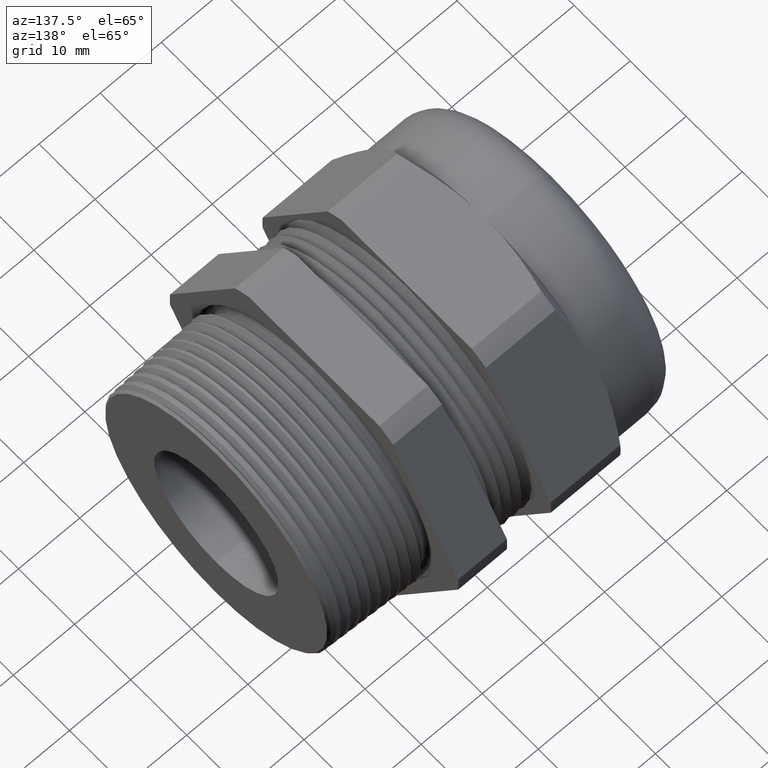
[diagram: clean part render]
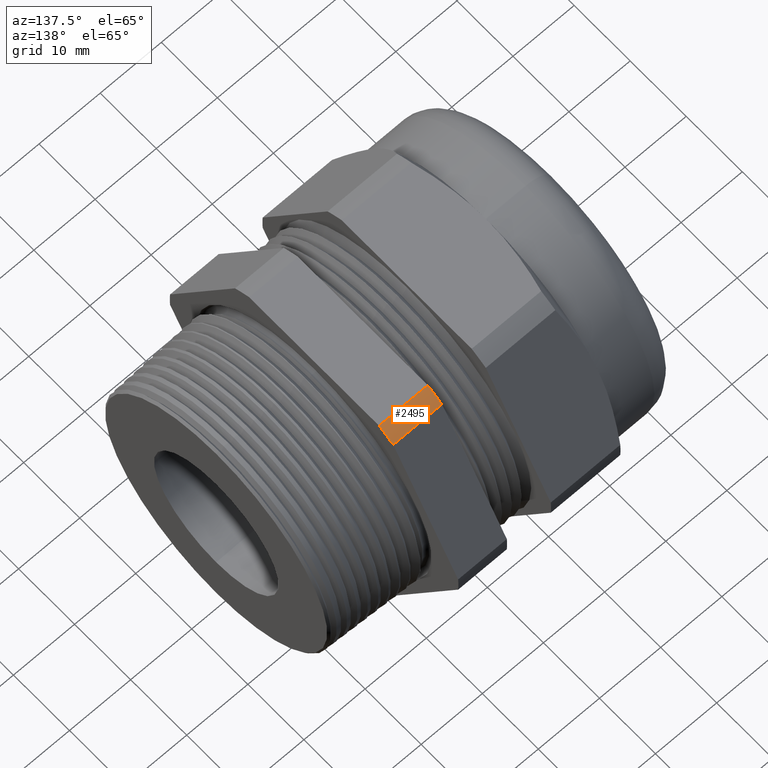
[diagram: same view with one face highlighted and labeled with its STEP entity id]
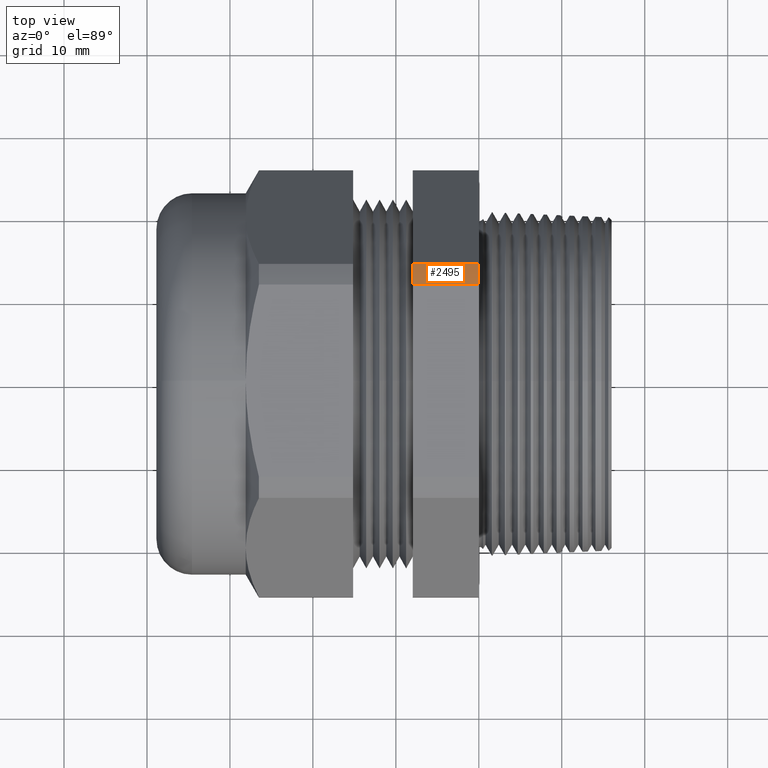
[diagram: same view with one face highlighted and labeled with its STEP entity id]
A machine part, auxiliary view. The second image highlights one B-rep face of the part: STEP entity #2495.
A second angle (top view) of the same face is appended — the face is thin or edge-on in the first view.
In plain terms, the highlighted cylindrical surface (partial cylindrical patch) has radius 25.7454 mm, axis along (-1, 0, 0).
Its self-contained STEP definition (entity closure, byte-faithful):
#110 = VERTEX_POINT ( 'NONE', #1557 ) ;
#111 = EDGE_CURVE ( 'NONE', #113, #110, #1556, .T. ) ;
#113 = VERTEX_POINT ( 'NONE', #1551 ) ;
#172 = VERTEX_POINT ( 'NONE', #1670 ) ;
#174 = EDGE_CURVE ( 'NONE', #175, #172, #1669, .T. ) ;
#175 = VERTEX_POINT ( 'NONE', #1664 ) ;
#1551 = CARTESIAN_POINT ( 'NONE',  ( -0.3134328358208957600, 0.4564646317076493900, 0.9050000000000001400 ) ) ;
#1552 = DIRECTION ( 'NONE',  ( 0.0000000000000000000, 0.0000000000000000000, 1.000000000000000000 ) ) ;
#1553 = DIRECTION ( 'NONE',  ( -1.000000000000000000, 0.0000000000000000000, 0.0000000000000000000 ) ) ;
#1554 = CARTESIAN_POINT ( 'NONE',  ( -0.3134328358208955400, 0.0000000000000000000, 0.0000000000000000000 ) ) ;
#1555 = AXIS2_PLACEMENT_3D ( 'NONE', #1554, #1553, #1552 ) ;
#1556 = CIRCLE ( 'NONE', #1555, 1.013600000000000100 ) ;
#1557 = CARTESIAN_POINT ( 'NONE',  ( -0.3134328358208957600, 0.5555206745710923300, 0.8478099669879322100 ) ) ;
#1664 = CARTESIAN_POINT ( 'NONE',  ( 0.0000000000000000000, 0.4564646317076493900, 0.9050000000000001400 ) ) ;
#1665 = DIRECTION ( 'NONE',  ( 0.0000000000000000000, 0.0000000000000000000, 1.000000000000000000 ) ) ;
#1666 = DIRECTION ( 'NONE',  ( -1.000000000000000000, 0.0000000000000000000, 0.0000000000000000000 ) ) ;
#1667 = CARTESIAN_POINT ( 'NONE',  ( 0.0000000000000000000, 0.0000000000000000000, 0.0000000000000000000 ) ) ;
#1668 = AXIS2_PLACEMENT_3D ( 'NONE', #1667, #1666, #1665 ) ;
#1669 = CIRCLE ( 'NONE', #1668, 1.013600000000000100 ) ;
#1670 = CARTESIAN_POINT ( 'NONE',  ( 0.0000000000000000000, 0.5555206745710923300, 0.8478099669879322100 ) ) ;
#2175 = ORIENTED_EDGE ( 'NONE', *, *, #174, .T. ) ;
#2495 = ADVANCED_FACE ( 'NONE', ( #3807 ), #3806, .T. ) ;
#2521 = EDGE_LOOP ( 'NONE', ( #2522, #2547, #2588, #2175 ) ) ;
#2522 = ORIENTED_EDGE ( 'NONE', *, *, #2621, .F. ) ;
#2547 = ORIENTED_EDGE ( 'NONE', *, *, #111, .F. ) ;
#2587 = EDGE_CURVE ( 'NONE', #113, #175, #3805, .T. ) ;
#2588 = ORIENTED_EDGE ( 'NONE', *, *, #2587, .T. ) ;
#2621 = EDGE_CURVE ( 'NONE', #110, #172, #3798, .T. ) ;
#3795 = DIRECTION ( 'NONE',  ( 1.000000000000000000, 0.0000000000000000000, 0.0000000000000000000 ) ) ;
#3796 = VECTOR ( 'NONE', #3795, 39.37007874015748100 ) ;
#3797 = CARTESIAN_POINT ( 'NONE',  ( -4.001812670979164800, 0.5555206745710923300, 0.8478099669879322100 ) ) ;
#3798 = LINE ( 'NONE', #3797, #3796 ) ;
#3799 = DIRECTION ( 'NONE',  ( 1.000000000000000000, 0.0000000000000000000, 0.0000000000000000000 ) ) ;
#3800 = VECTOR ( 'NONE', #3799, 39.37007874015748100 ) ;
#3801 = CARTESIAN_POINT ( 'NONE',  ( -4.001812670979164800, 0.4564646317076493900, 0.9050000000000001400 ) ) ;
#3802 = DIRECTION ( 'NONE',  ( 0.0000000000000000000, 0.0000000000000000000, 1.000000000000000000 ) ) ;
#3803 = DIRECTION ( 'NONE',  ( -1.000000000000000000, 0.0000000000000000000, 0.0000000000000000000 ) ) ;
#3804 = AXIS2_PLACEMENT_3D ( 'NONE', #3811, #3803, #3802 ) ;
#3805 = LINE ( 'NONE', #3801, #3800 ) ;
#3806 = CYLINDRICAL_SURFACE ( 'NONE', #3804, 1.013600000000000100 ) ;
#3807 = FACE_OUTER_BOUND ( 'NONE', #2521, .T. ) ;
#3811 = CARTESIAN_POINT ( 'NONE',  ( -0.7238591030180623300, 0.0000000000000000000, 0.0000000000000000000 ) ) ;